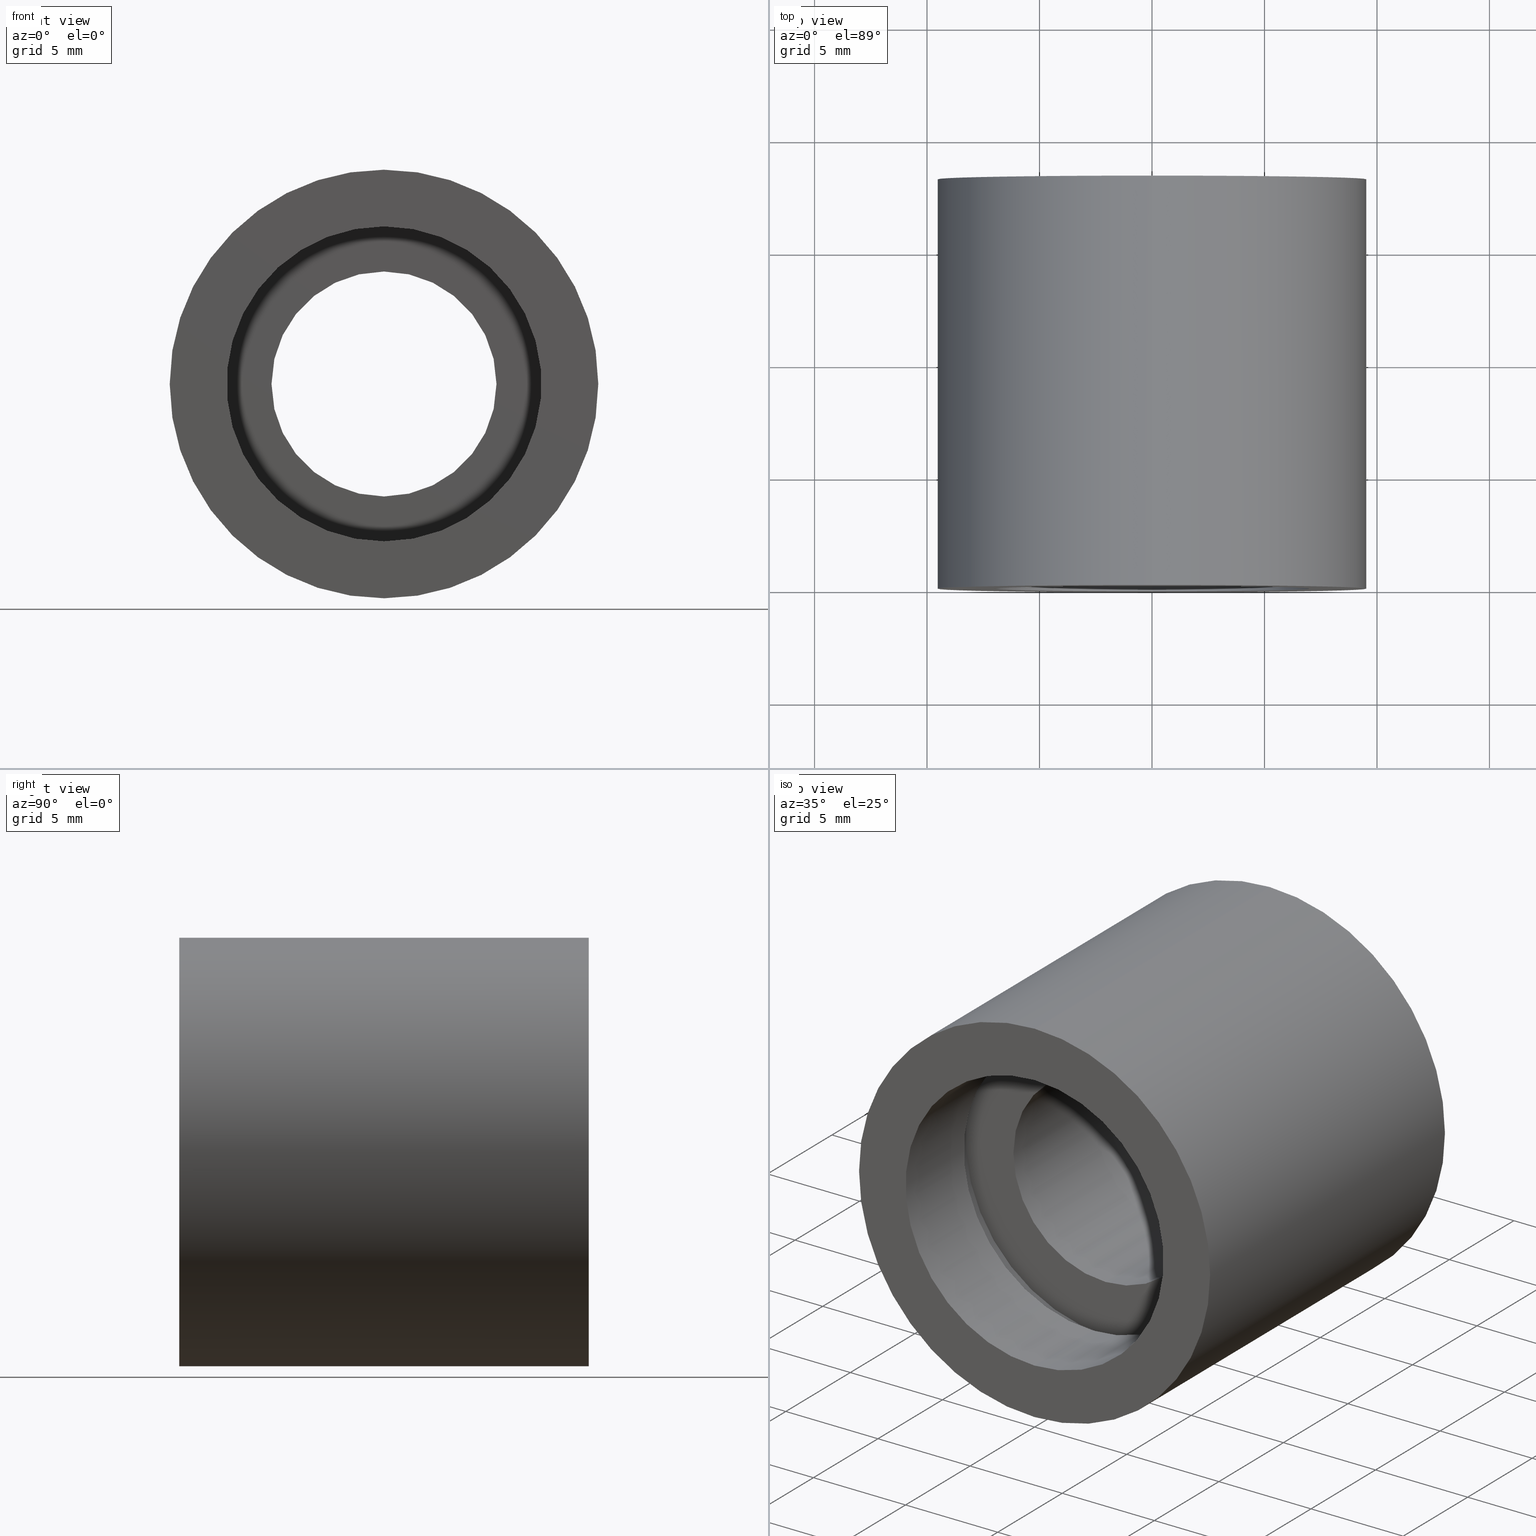
[diagram: canonical four-view strip — front | top / right | iso, engineering-drawing reading convention]
A machine part, canonical four-view strip (front | top / right | iso — engineering-drawing reading convention). The complete STEP part file that produces these views, byte-faithful:
ISO-10303-21;
HEADER;
FILE_DESCRIPTION (( 'STEP AP214' ),
    '1' );
FILE_NAME ('503098.STEP',
    '2019-09-11T08:44:09',
    ( '' ),
    ( '' ),
    'SwSTEP 2.0',
    'SolidWorks 2016',
    '' );
FILE_SCHEMA (( 'AUTOMOTIVE_DESIGN' ));
ENDSEC;

DATA;
#1 = PLANE ( 'NONE',  #598 ) ;
#2 = DIRECTION ( 'NONE',  ( -0.0000000000000000000, 1.000000000000000000, -0.0000000000000000000 ) ) ;
#3 = DIRECTION ( 'NONE',  ( 0.0000000000000000000, -1.000000000000000000, 0.0000000000000000000 ) ) ;
#4 = AXIS2_PLACEMENT_3D ( 'NONE', #235, #575, #347 ) ;
#5 = EDGE_LOOP ( 'NONE', ( #168, #387, #214, #605 ) ) ;
#6 = CARTESIAN_POINT ( 'NONE',  ( 0.0000000000000000000, 4.499999999999976000, 0.0000000000000000000 ) ) ;
#7 = EDGE_CURVE ( 'NONE', #467, #444, #619, .T. ) ;
#8 = DIRECTION ( 'NONE',  ( 0.0000000000000000000, 0.0000000000000000000, 1.000000000000000000 ) ) ;
#9 = CARTESIAN_POINT ( 'NONE',  ( 0.0000000000000000000, 161.3761669434274500, 7.000000000000020400 ) ) ;
#10 = DIRECTION ( 'NONE',  ( 0.0000000000000000000, 0.0000000000000000000, 1.000000000000000000 ) ) ;
#11 = SURFACE_SIDE_STYLE ('',( #601 ) ) ;
#12 = CARTESIAN_POINT ( 'NONE',  ( 8.572527594031496900E-016, 161.3761669434274500, -7.000000000000020400 ) ) ;
#13 = PRESENTATION_LAYER_ASSIGNMENT (  '', '', ( #118 ) ) ;
#14 = EDGE_LOOP ( 'NONE', ( #491, #321, #194, #463 ) ) ;
#15 = ORIENTED_EDGE ( 'NONE', *, *, #477, .F. ) ;
#16 = PRESENTATION_STYLE_ASSIGNMENT (( #286 ) ) ;
#17 = CIRCLE ( 'NONE', #61, 7.600000000000019200 ) ;
#18 = SURFACE_SIDE_STYLE ('',( #115 ) ) ;
#19 = EDGE_CURVE ( 'NONE', #63, #550, #117, .T. ) ;
#20 = VERTEX_POINT ( 'NONE', #148 ) ;
#21 = PRODUCT_DEFINITION_SHAPE ( 'NONE', 'NONE',  #97 ) ;
#22 = PRESENTATION_LAYER_ASSIGNMENT (  '', '', ( #69 ) ) ;
#23 = ORIENTED_EDGE ( 'NONE', *, *, #506, .F. ) ;
#24 = ADVANCED_FACE ( 'NONE', ( #496, #261 ), #485, .F. ) ;
#25 = EDGE_CURVE ( 'NONE', #358, #267, #211, .T. ) ;
#26 = ORIENTED_EDGE ( 'NONE', *, *, #578, .T. ) ;
#27 = CARTESIAN_POINT ( 'NONE',  ( 0.0000000000000000000, -2.775557561562891400E-014, 0.0000000000000000000 ) ) ;
#28 = VECTOR ( 'NONE', #561, 1000.000000000000000 ) ;
#29 =( NAMED_UNIT ( * ) PLANE_ANGLE_UNIT ( ) SI_UNIT ( $, .RADIAN. ) );
#30 = ADVANCED_FACE ( 'NONE', ( #585 ), #604, .F. ) ;
#31 = ORIENTED_EDGE ( 'NONE', *, *, #602, .F. ) ;
#32 =( NAMED_UNIT ( * ) PLANE_ANGLE_UNIT ( ) SI_UNIT ( $, .RADIAN. ) );
#33 = MECHANICAL_DESIGN_GEOMETRIC_PRESENTATION_REPRESENTATION (  '', ( #308 ), #338 ) ;
#34 = CARTESIAN_POINT ( 'NONE',  ( 0.0000000000000000000, 161.3761669434274500, 5.000000000000019500 ) ) ;
#35 = EDGE_LOOP ( 'NONE', ( #552, #140 ) ) ;
#36 = CARTESIAN_POINT ( 'NONE',  ( 0.0000000000000000000, 12.69999999999998900, 5.000000000000019500 ) ) ;
#37 = DIRECTION ( 'NONE',  ( -0.0000000000000000000, 1.000000000000000000, -0.0000000000000000000 ) ) ;
#38 = FACE_OUTER_BOUND ( 'NONE', #116, .T. ) ;
#39 = CARTESIAN_POINT ( 'NONE',  ( 8.817456953860961000E-016, 13.69999999999999000, -7.200000000000015300 ) ) ;
#40 = ORIENTED_EDGE ( 'NONE', *, *, #549, .F. ) ;
#41 = EDGE_CURVE ( 'NONE', #113, #316, #405, .T. ) ;
#42 = DIRECTION ( 'NONE',  ( 0.0000000000000000000, 0.0000000000000000000, 1.000000000000000000 ) ) ;
#43 =( LENGTH_UNIT ( ) NAMED_UNIT ( * ) SI_UNIT ( .MILLI., .METRE. ) );
#44 = ORIENTED_EDGE ( 'NONE', *, *, #319, .T. ) ;
#45 = ORIENTED_EDGE ( 'NONE', *, *, #332, .T. ) ;
#46 = PRESENTATION_STYLE_ASSIGNMENT (( #539 ) ) ;
#47 =( NAMED_UNIT ( * ) SI_UNIT ( $, .STERADIAN. ) SOLID_ANGLE_UNIT ( ) );
#48 = ORIENTED_EDGE ( 'NONE', *, *, #413, .F. ) ;
#49 = EDGE_CURVE ( 'NONE', #172, #282, #271, .T. ) ;
#50 = DIRECTION ( 'NONE',  ( 0.0000000000000000000, 0.0000000000000000000, 1.000000000000000000 ) ) ;
#51 = ORIENTED_EDGE ( 'NONE', *, *, #565, .T. ) ;
#52 = PRESENTATION_STYLE_ASSIGNMENT (( #94 ) ) ;
#53 =( LENGTH_UNIT ( ) NAMED_UNIT ( * ) SI_UNIT ( .MILLI., .METRE. ) );
#54 = PRESENTATION_STYLE_ASSIGNMENT (( #415 ) ) ;
#55 = ORIENTED_EDGE ( 'NONE', *, *, #565, .F. ) ;
#56 = DIRECTION ( 'NONE',  ( 0.0000000000000000000, 0.0000000000000000000, 1.000000000000000000 ) ) ;
#57 = PRESENTATION_LAYER_ASSIGNMENT (  '', '', ( #327 ) ) ;
#58 = FACE_BOUND ( 'NONE', #260, .T. ) ;
#59 = FILL_AREA_STYLE ('',( #354 ) ) ;
#60 = FACE_OUTER_BOUND ( 'NONE', #299, .T. ) ;
#61 = AXIS2_PLACEMENT_3D ( 'NONE', #379, #138, #521 ) ;
#62 =( NAMED_UNIT ( * ) SI_UNIT ( $, .STERADIAN. ) SOLID_ANGLE_UNIT ( ) );
#63 = VERTEX_POINT ( 'NONE', #105 ) ;
#64 = CARTESIAN_POINT ( 'NONE',  ( 0.0000000000000000000, 0.0000000000000000000, 0.0000000000000000000 ) ) ;
#65 = ORIENTED_EDGE ( 'NONE', *, *, #348, .F. ) ;
#66 = ADVANCED_FACE ( 'NONE', ( #306, #109 ), #590, .F. ) ;
#67 = FACE_BOUND ( 'NONE', #383, .T. ) ;
#68 = EDGE_CURVE ( 'NONE', #545, #78, #144, .T. ) ;
#69 = STYLED_ITEM ( 'NONE', ( #54 ), #264 ) ;
#70 = ORIENTED_EDGE ( 'NONE', *, *, #549, .T. ) ;
#71 = ADVANCED_FACE ( 'NONE', ( #548 ), #593, .F. ) ;
#72 = EDGE_CURVE ( 'NONE', #444, #535, #573, .T. ) ;
#73 = CIRCLE ( 'NONE', #457, 7.600000000000019200 ) ;
#74 = FILL_AREA_STYLE ('',( #471 ) ) ;
#75 = VECTOR ( 'NONE', #323, 1000.000000000000000 ) ;
#76 = DIRECTION ( 'NONE',  ( -0.0000000000000000000, 1.000000000000000000, -0.0000000000000000000 ) ) ;
#77 = MECHANICAL_DESIGN_GEOMETRIC_PRESENTATION_REPRESENTATION (  '', ( #327 ), #353 ) ;
#78 = VERTEX_POINT ( 'NONE', #153 ) ;
#79 = DIRECTION ( 'NONE',  ( -0.0000000000000000000, 1.000000000000000000, -0.0000000000000000000 ) ) ;
#80 = EDGE_CURVE ( 'NONE', #474, #292, #160, .T. ) ;
#81 = EDGE_LOOP ( 'NONE', ( #456, #101 ) ) ;
#82 = CARTESIAN_POINT ( 'NONE',  ( 0.0000000000000000000, 5.499999999999976900, 0.0000000000000000000 ) ) ;
#83 = SURFACE_STYLE_FILL_AREA ( #516 ) ;
#84 = VECTOR ( 'NONE', #345, 1000.000000000000000 ) ;
#85 = ORIENTED_EDGE ( 'NONE', *, *, #303, .F. ) ;
#86 = CARTESIAN_POINT ( 'NONE',  ( 7.000000000000020400, -1.634585625335647100E-014, 0.0000000000000000000 ) ) ;
#87 = CARTESIAN_POINT ( 'NONE',  ( 8.817456953860963000E-016, 18.19999999999999600, -7.200000000000017100 ) ) ;
#88 = CARTESIAN_POINT ( 'NONE',  ( 0.0000000000000000000, 4.499999999999976000, 7.600000000000019200 ) ) ;
#89 = CIRCLE ( 'NONE', #133, 7.600000000000019200 ) ;
#90 = ORIENTED_EDGE ( 'NONE', *, *, #136, .T. ) ;
#91 = UNCERTAINTY_MEASURE_WITH_UNIT (LENGTH_MEASURE( 1.000000000000000100E-005 ), #617, 'distance_accuracy_value', 'NONE');
#92 = AXIS2_PLACEMENT_3D ( 'NONE', #301, #204, #594 ) ;
#93 = CARTESIAN_POINT ( 'NONE',  ( 0.0000000000000000000, 4.499999999999976000, 0.0000000000000000000 ) ) ;
#94 = SURFACE_STYLE_USAGE ( .BOTH. , #339 ) ;
#95 = DIRECTION ( 'NONE',  ( 0.0000000000000000000, 0.0000000000000000000, 1.000000000000000000 ) ) ;
#96 = LINE ( 'NONE', #615, #28 ) ;
#97 = PRODUCT_DEFINITION ( 'δ֪', '', #162, #254 ) ;
#98 = DIRECTION ( 'NONE',  ( 0.0000000000000000000, 0.0000000000000000000, 1.000000000000000000 ) ) ;
#99 = LINE ( 'NONE', #9, #599 ) ;
#100 = PRODUCT ( '503098', '503098', '', ( #551 ) ) ;
#101 = ORIENTED_EDGE ( 'NONE', *, *, #527, .T. ) ;
#102 = EDGE_CURVE ( 'NONE', #78, #545, #429, .T. ) ;
#103 =( GEOMETRIC_REPRESENTATION_CONTEXT ( 3 ) GLOBAL_UNCERTAINTY_ASSIGNED_CONTEXT ( ( #297 ) ) GLOBAL_UNIT_ASSIGNED_CONTEXT ( ( #272, #32, #274 ) ) REPRESENTATION_CONTEXT ( 'NONE', 'WORKASPACE' ) );
#104 = CARTESIAN_POINT ( 'NONE',  ( 0.0000000000000000000, -2.775557561562891400E-014, 0.0000000000000000000 ) ) ;
#105 = CARTESIAN_POINT ( 'NONE',  ( 6.123233995736789000E-016, 5.499999999999976900, -5.000000000000019500 ) ) ;
#106 = FACE_OUTER_BOUND ( 'NONE', #5, .T. ) ;
#107 = EDGE_CURVE ( 'NONE', #358, #546, #17, .T. ) ;
#108 = ORIENTED_EDGE ( 'NONE', *, *, #72, .F. ) ;
#109 = FACE_OUTER_BOUND ( 'NONE', #340, .T. ) ;
#110 = CARTESIAN_POINT ( 'NONE',  ( 7.000000000000020400, 4.499999999999983100, 0.0000000000000000000 ) ) ;
#111 = ORIENTED_EDGE ( 'NONE', *, *, #136, .F. ) ;
#112 = AXIS2_PLACEMENT_3D ( 'NONE', #432, #579, #294 ) ;
#113 = VERTEX_POINT ( 'NONE', #183 ) ;
#114 = EDGE_CURVE ( 'NONE', #529, #267, #480, .T. ) ;
#115 = SURFACE_STYLE_FILL_AREA ( #59 ) ;
#116 = EDGE_LOOP ( 'NONE', ( #597, #179, #510, #249 ) ) ;
#117 = CIRCLE ( 'NONE', #624, 5.000000000000019500 ) ;
#118 = STYLED_ITEM ( 'NONE', ( #46 ), #609 ) ;
#119 = ORIENTED_EDGE ( 'NONE', *, *, #80, .T. ) ;
#120 = DIRECTION ( 'NONE',  ( -0.0000000000000000000, 1.000000000000000000, -0.0000000000000000000 ) ) ;
#121 = AXIS2_PLACEMENT_3D ( 'NONE', #224, #613, #236 ) ;
#122 = CARTESIAN_POINT ( 'NONE',  ( 0.0000000000000000000, 12.69999999999998900, 0.0000000000000000000 ) ) ;
#123 = ORIENTED_EDGE ( 'NONE', *, *, #234, .F. ) ;
#124 = LINE ( 'NONE', #34, #530 ) ;
#125 =( NAMED_UNIT ( * ) SI_UNIT ( $, .STERADIAN. ) SOLID_ANGLE_UNIT ( ) );
#126 = CARTESIAN_POINT ( 'NONE',  ( 6.123233995736789000E-016, 161.3761669434274500, -5.000000000000019500 ) ) ;
#127 = DIRECTION ( 'NONE',  ( 0.0000000000000000000, 0.0000000000000000000, 1.000000000000000000 ) ) ;
#128 = AXIS2_PLACEMENT_3D ( 'NONE', #465, #320, #365 ) ;
#129 = VERTEX_POINT ( 'NONE', #372 ) ;
#130 = CARTESIAN_POINT ( 'NONE',  ( 0.0000000000000000000, 5.499999999999976900, 0.0000000000000000000 ) ) ;
#131 = CARTESIAN_POINT ( 'NONE',  ( 0.0000000000000000000, 161.3761669434274500, 0.0000000000000000000 ) ) ;
#132 = AXIS2_PLACEMENT_3D ( 'NONE', #433, #240, #490 ) ;
#133 = AXIS2_PLACEMENT_3D ( 'NONE', #93, #620, #419 ) ;
#134 = DIRECTION ( 'NONE',  ( -0.0000000000000000000, 1.000000000000000000, 0.0000000000000000000 ) ) ;
#135 = FILL_AREA_STYLE ('',( #181 ) ) ;
#136 = EDGE_CURVE ( 'NONE', #550, #63, #352, .T. ) ;
#137 = CARTESIAN_POINT ( 'NONE',  ( 8.817456953860961000E-016, 161.3761669434274500, -7.200000000000015300 ) ) ;
#138 = DIRECTION ( 'NONE',  ( -0.0000000000000000000, 1.000000000000000000, -0.0000000000000000000 ) ) ;
#139 = DIRECTION ( 'NONE',  ( -0.0000000000000000000, 1.000000000000000000, -0.0000000000000000000 ) ) ;
#140 = ORIENTED_EDGE ( 'NONE', *, *, #578, .F. ) ;
#141 = CYLINDRICAL_SURFACE ( 'NONE', #229, 7.600000000000019200 ) ;
#142 = PRESENTATION_LAYER_ASSIGNMENT (  '', '', ( #255 ) ) ;
#143 = CARTESIAN_POINT ( 'NONE',  ( 0.0000000000000000000, 161.3761669434274500, 0.0000000000000000000 ) ) ;
#144 = CIRCLE ( 'NONE', #461, 9.525000000000019900 ) ;
#145 = CARTESIAN_POINT ( 'NONE',  ( 0.0000000000000000000, 18.19999999999999600, 9.525000000000019900 ) ) ;
#146 = ORIENTED_EDGE ( 'NONE', *, *, #41, .F. ) ;
#147 = CARTESIAN_POINT ( 'NONE',  ( 0.0000000000000000000, 161.3761669434274500, 0.0000000000000000000 ) ) ;
#148 = CARTESIAN_POINT ( 'NONE',  ( 6.123233995736789000E-016, 12.69999999999998900, -5.000000000000019500 ) ) ;
#149 = DIRECTION ( 'NONE',  ( -0.0000000000000000000, 1.000000000000000000, -0.0000000000000000000 ) ) ;
#150 = CARTESIAN_POINT ( 'NONE',  ( 0.0000000000000000000, 5.499999999999976900, 5.000000000000019500 ) ) ;
#151 = CYLINDRICAL_SURFACE ( 'NONE', #216, 7.000000000000020400 ) ;
#152 =( LENGTH_UNIT ( ) NAMED_UNIT ( * ) SI_UNIT ( .MILLI., .METRE. ) );
#153 = CARTESIAN_POINT ( 'NONE',  ( 1.166476076187856400E-015, 18.19999999999999600, -9.525000000000019900 ) ) ;
#154 = APPLICATION_PROTOCOL_DEFINITION ( 'draft international standard', 'automotive_design', 1998, #212 ) ;
#155 = SURFACE_STYLE_USAGE ( .BOTH. , #11 ) ;
#156 = ORIENTED_EDGE ( 'NONE', *, *, #527, .F. ) ;
#157 = UNCERTAINTY_MEASURE_WITH_UNIT (LENGTH_MEASURE( 1.000000000000000100E-005 ), #43, 'distance_accuracy_value', 'NONE');
#158 = ORIENTED_EDGE ( 'NONE', *, *, #263, .F. ) ;
#159 = MECHANICAL_DESIGN_GEOMETRIC_PRESENTATION_REPRESENTATION (  '', ( #407 ), #610 ) ;
#160 = CIRCLE ( 'NONE', #247, 7.600000000000019200 ) ;
#161 = EDGE_LOOP ( 'NONE', ( #421, #218 ) ) ;
#162 = PRODUCT_DEFINITION_FORMATION_WITH_SPECIFIED_SOURCE ( '�κ�', '', #100, .NOT_KNOWN. ) ;
#163 =( NAMED_UNIT ( * ) PLANE_ANGLE_UNIT ( ) SI_UNIT ( $, .RADIAN. ) );
#164 = ORIENTED_EDGE ( 'NONE', *, *, #442, .F. ) ;
#165 = ADVANCED_FACE ( 'NONE', ( #460 ), #217, .T. ) ;
#166 = AXIS2_PLACEMENT_3D ( 'NONE', #580, #149, #351 ) ;
#167 = MECHANICAL_DESIGN_GEOMETRIC_PRESENTATION_REPRESENTATION (  '', ( #118 ), #406 ) ;
#168 = ORIENTED_EDGE ( 'NONE', *, *, #19, .F. ) ;
#169 = EDGE_CURVE ( 'NONE', #302, #282, #284, .T. ) ;
#170 = ORIENTED_EDGE ( 'NONE', *, *, #378, .F. ) ;
#171 = VERTEX_POINT ( 'NONE', #87 ) ;
#172 = VERTEX_POINT ( 'NONE', #472 ) ;
#173 = CARTESIAN_POINT ( 'NONE',  ( 8.572527594031496900E-016, 4.499999999999976000, -7.000000000000020400 ) ) ;
#174 = ADVANCED_FACE ( 'NONE', ( #60 ), #334, .T. ) ;
#175 = COLOUR_RGB ( '',1.000000000000000000, 1.000000000000000000, 1.000000000000000000 ) ;
#176 = DIRECTION ( 'NONE',  ( 0.0000000000000000000, 0.0000000000000000000, 1.000000000000000000 ) ) ;
#177 = EDGE_CURVE ( 'NONE', #546, #529, #559, .T. ) ;
#178 = CARTESIAN_POINT ( 'NONE',  ( 1.166476076187856400E-015, -2.775557561562891400E-014, -9.525000000000019900 ) ) ;
#179 = ORIENTED_EDGE ( 'NONE', *, *, #25, .T. ) ;
#180 = VECTOR ( 'NONE', #335, 1000.000000000000000 ) ;
#181 = FILL_AREA_STYLE_COLOUR ( '', #514 ) ;
#182 = CYLINDRICAL_SURFACE ( 'NONE', #538, 7.000000000000020400 ) ;
#183 = CARTESIAN_POINT ( 'NONE',  ( 0.0000000000000000000, -2.775557561562891400E-014, 9.525000000000019900 ) ) ;
#184 = ORIENTED_EDGE ( 'NONE', *, *, #7, .F. ) ;
#185 = DIRECTION ( 'NONE',  ( -0.0000000000000000000, 1.000000000000000000, -0.0000000000000000000 ) ) ;
#186 = EDGE_LOOP ( 'NONE', ( #360, #227 ) ) ;
#187 = DIRECTION ( 'NONE',  ( -0.0000000000000000000, 1.000000000000000000, 0.0000000000000000000 ) ) ;
#188 = CYLINDRICAL_SURFACE ( 'NONE', #4, 7.200000000000015300 ) ;
#189 = ORIENTED_EDGE ( 'NONE', *, *, #202, .F. ) ;
#190 = DIRECTION ( 'NONE',  ( -0.0000000000000000000, 1.000000000000000000, -0.0000000000000000000 ) ) ;
#191 = PRESENTATION_LAYER_ASSIGNMENT (  '', '', ( #400 ) ) ;
#192 = FILL_AREA_STYLE ('',( #528 ) ) ;
#193 = CARTESIAN_POINT ( 'NONE',  ( 9.307315673519907200E-016, 5.499999999999976900, -7.600000000000019200 ) ) ;
#194 = ORIENTED_EDGE ( 'NONE', *, *, #68, .F. ) ;
#195 = SURFACE_STYLE_FILL_AREA ( #390 ) ;
#196 = PRODUCT_RELATED_PRODUCT_CATEGORY ( 'part', '', ( #100 ) ) ;
#197 = FILL_AREA_STYLE ('',( #244 ) ) ;
#198 = CIRCLE ( 'NONE', #431, 7.600000000000019200 ) ;
#199 = AXIS2_PLACEMENT_3D ( 'NONE', #147, #396, #304 ) ;
#200 = CARTESIAN_POINT ( 'NONE',  ( 0.0000000000000000000, 161.3761669434274500, 0.0000000000000000000 ) ) ;
#201 =( NAMED_UNIT ( * ) PLANE_ANGLE_UNIT ( ) SI_UNIT ( $, .RADIAN. ) );
#202 = EDGE_CURVE ( 'NONE', #623, #567, #259, .T. ) ;
#203 = FACE_OUTER_BOUND ( 'NONE', #186, .T. ) ;
#204 = DIRECTION ( 'NONE',  ( -0.0000000000000000000, 1.000000000000000000, -0.0000000000000000000 ) ) ;
#205 = PRESENTATION_STYLE_ASSIGNMENT (( #330 ) ) ;
#206 = EDGE_LOOP ( 'NONE', ( #189, #526 ) ) ;
#207 = AXIS2_PLACEMENT_3D ( 'NONE', #143, #523, #232 ) ;
#208 = CARTESIAN_POINT ( 'NONE',  ( 0.0000000000000000000, 5.499999999999976900, 7.600000000000019200 ) ) ;
#209 = VECTOR ( 'NONE', #375, 1000.000000000000000 ) ;
#210 = AXIS2_PLACEMENT_3D ( 'NONE', #486, #3, #290 ) ;
#211 = LINE ( 'NONE', #582, #84 ) ;
#212 = APPLICATION_CONTEXT ( 'automotive_design' ) ;
#213 = ADVANCED_FACE ( 'NONE', ( #449 ), #182, .F. ) ;
#214 = ORIENTED_EDGE ( 'NONE', *, *, #234, .T. ) ;
#215 = LINE ( 'NONE', #478, #223 ) ;
#216 = AXIS2_PLACEMENT_3D ( 'NONE', #367, #120, #417 ) ;
#217 = CYLINDRICAL_SURFACE ( 'NONE', #470, 9.525000000000019900 ) ;
#218 = ORIENTED_EDGE ( 'NONE', *, *, #7, .T. ) ;
#219 = EDGE_CURVE ( 'NONE', #474, #623, #455, .T. ) ;
#220 = CARTESIAN_POINT ( 'NONE',  ( 9.307315673519907200E-016, 13.69999999999999000, -7.600000000000019200 ) ) ;
#221 = EDGE_LOOP ( 'NONE', ( #23, #441, #256, #401 ) ) ;
#222 = DIRECTION ( 'NONE',  ( 0.0000000000000000000, 0.0000000000000000000, 1.000000000000000000 ) ) ;
#223 = VECTOR ( 'NONE', #329, 1000.000000000000000 ) ;
#224 = CARTESIAN_POINT ( 'NONE',  ( 0.0000000000000000000, 13.69999999999999000, 0.0000000000000000000 ) ) ;
#225 = COLOUR_RGB ( '',1.000000000000000000, 1.000000000000000000, 1.000000000000000000 ) ;
#226 = CIRCLE ( 'NONE', #574, 5.000000000000019500 ) ;
#227 = ORIENTED_EDGE ( 'NONE', *, *, #107, .T. ) ;
#228 = SURFACE_SIDE_STYLE ('',( #83 ) ) ;
#229 = AXIS2_PLACEMENT_3D ( 'NONE', #381, #230, #278 ) ;
#230 = DIRECTION ( 'NONE',  ( -0.0000000000000000000, 1.000000000000000000, -0.0000000000000000000 ) ) ;
#231 = CARTESIAN_POINT ( 'NONE',  ( 0.0000000000000000000, 161.3761669434274500, 0.0000000000000000000 ) ) ;
#232 = DIRECTION ( 'NONE',  ( 0.0000000000000000000, 0.0000000000000000000, 1.000000000000000000 ) ) ;
#233 = CARTESIAN_POINT ( 'NONE',  ( 0.0000000000000000000, 161.3761669434274500, 0.0000000000000000000 ) ) ;
#234 = EDGE_CURVE ( 'NONE', #20, #452, #363, .T. ) ;
#235 = CARTESIAN_POINT ( 'NONE',  ( 0.0000000000000000000, 161.3761669434274500, 0.0000000000000000000 ) ) ;
#236 = DIRECTION ( 'NONE',  ( 0.0000000000000000000, 0.0000000000000000000, 1.000000000000000000 ) ) ;
#237 = ORIENTED_EDGE ( 'NONE', *, *, #378, .T. ) ;
#238 = CARTESIAN_POINT ( 'NONE',  ( 0.0000000000000000000, 13.69999999999999000, 7.200000000000015300 ) ) ;
#239 = DIRECTION ( 'NONE',  ( 0.0000000000000000000, 0.0000000000000000000, 1.000000000000000000 ) ) ;
#240 = DIRECTION ( 'NONE',  ( -0.0000000000000000000, 1.000000000000000000, -0.0000000000000000000 ) ) ;
#241 = EDGE_LOOP ( 'NONE', ( #504, #15 ) ) ;
#242 = VECTOR ( 'NONE', #280, 1000.000000000000000 ) ;
#243 = PLANE ( 'NONE',  #112 ) ;
#244 = FILL_AREA_STYLE_COLOUR ( '', #473 ) ;
#245 = UNCERTAINTY_MEASURE_WITH_UNIT (LENGTH_MEASURE( 1.000000000000000100E-005 ), #269, 'distance_accuracy_value', 'NONE');
#246 = CYLINDRICAL_SURFACE ( 'NONE', #199, 5.000000000000019500 ) ;
#247 = AXIS2_PLACEMENT_3D ( 'NONE', #376, #423, #426 ) ;
#248 = CARTESIAN_POINT ( 'NONE',  ( 0.0000000000000000000, 12.69999999999998900, 7.600000000000019200 ) ) ;
#249 = ORIENTED_EDGE ( 'NONE', *, *, #177, .F. ) ;
#250 = DIRECTION ( 'NONE',  ( 0.0000000000000000000, 0.0000000000000000000, 1.000000000000000000 ) ) ;
#251 = DIRECTION ( 'NONE',  ( -0.0000000000000000000, 1.000000000000000000, -0.0000000000000000000 ) ) ;
#252 = DIRECTION ( 'NONE',  ( -0.0000000000000000000, 1.000000000000000000, -0.0000000000000000000 ) ) ;
#253 = DIRECTION ( 'NONE',  ( -0.0000000000000000000, 1.000000000000000000, -0.0000000000000000000 ) ) ;
#254 = PRODUCT_DEFINITION_CONTEXT ( 'detailed design', #503, 'design' ) ;
#255 = STYLED_ITEM ( 'NONE', ( #52 ), #513 ) ;
#256 = ORIENTED_EDGE ( 'NONE', *, *, #219, .T. ) ;
#257 = ORIENTED_EDGE ( 'NONE', *, *, #541, .T. ) ;
#258 = FACE_OUTER_BOUND ( 'NONE', #241, .T. ) ;
#259 = CIRCLE ( 'NONE', #310, 7.600000000000019200 ) ;
#260 = EDGE_LOOP ( 'NONE', ( #90, #368 ) ) ;
#261 = FACE_OUTER_BOUND ( 'NONE', #366, .T. ) ;
#262 = AXIS2_PLACEMENT_3D ( 'NONE', #558, #468, #612 ) ;
#263 = EDGE_CURVE ( 'NONE', #546, #358, #277, .T. ) ;
#264 = ADVANCED_FACE ( 'NONE', ( #438 ), #151, .F. ) ;
#265 = DIRECTION ( 'NONE',  ( -0.0000000000000000000, 1.000000000000000000, -0.0000000000000000000 ) ) ;
#266 = ADVANCED_FACE ( 'NONE', ( #38 ), #313, .F. ) ;
#267 = VERTEX_POINT ( 'NONE', #220 ) ;
#268 = COLOUR_RGB ( '',1.000000000000000000, 1.000000000000000000, 1.000000000000000000 ) ;
#269 =( LENGTH_UNIT ( ) NAMED_UNIT ( * ) SI_UNIT ( .MILLI., .METRE. ) );
#270 = AXIS2_PLACEMENT_3D ( 'NONE', #6, #251, #344 ) ;
#271 = LINE ( 'NONE', #12, #532 ) ;
#272 =( LENGTH_UNIT ( ) NAMED_UNIT ( * ) SI_UNIT ( .MILLI., .METRE. ) );
#273 = AXIS2_PLACEMENT_3D ( 'NONE', #418, #481, #572 ) ;
#274 =( NAMED_UNIT ( * ) SI_UNIT ( $, .STERADIAN. ) SOLID_ANGLE_UNIT ( ) );
#275 = DIRECTION ( 'NONE',  ( 0.0000000000000000000, 0.0000000000000000000, 1.000000000000000000 ) ) ;
#276 = DIRECTION ( 'NONE',  ( 0.0000000000000000000, 0.0000000000000000000, 1.000000000000000000 ) ) ;
#277 = CIRCLE ( 'NONE', #357, 7.600000000000019200 ) ;
#278 = DIRECTION ( 'NONE',  ( 0.0000000000000000000, 0.0000000000000000000, 1.000000000000000000 ) ) ;
#279 = MECHANICAL_DESIGN_GEOMETRIC_PRESENTATION_REPRESENTATION (  '', ( #255 ), #500 ) ;
#280 = DIRECTION ( 'NONE',  ( -0.0000000000000000000, 1.000000000000000000, -0.0000000000000000000 ) ) ;
#281 = DIRECTION ( 'NONE',  ( -0.0000000000000000000, 1.000000000000000000, -0.0000000000000000000 ) ) ;
#282 = VERTEX_POINT ( 'NONE', #173 ) ;
#283 = CARTESIAN_POINT ( 'NONE',  ( 5.000000000000019500, 12.69999999999998200, 0.0000000000000000000 ) ) ;
#284 = CIRCLE ( 'NONE', #451, 7.000000000000020400 ) ;
#285 = EDGE_CURVE ( 'NONE', #567, #623, #198, .T. ) ;
#286 = SURFACE_STYLE_USAGE ( .BOTH. , #531 ) ;
#287 = ADVANCED_BREP_SHAPE_REPRESENTATION ( '503098', ( #311, #395 ), #466 ) ;
#288 = ORIENTED_EDGE ( 'NONE', *, *, #285, .T. ) ;
#289 =( NAMED_UNIT ( * ) PLANE_ANGLE_UNIT ( ) SI_UNIT ( $, .RADIAN. ) );
#290 = DIRECTION ( 'NONE',  ( 0.0000000000000000000, -0.0000000000000000000, -1.000000000000000000 ) ) ;
#291 = FILL_AREA_STYLE ('',( #437 ) ) ;
#292 = VERTEX_POINT ( 'NONE', #611 ) ;
#293 = FACE_OUTER_BOUND ( 'NONE', #206, .T. ) ;
#294 = DIRECTION ( 'NONE',  ( 0.0000000000000000000, 0.0000000000000000000, 1.000000000000000000 ) ) ;
#295 = MECHANICAL_DESIGN_GEOMETRIC_PRESENTATION_REPRESENTATION (  '', ( #409 ), #103 ) ;
#296 = CARTESIAN_POINT ( 'NONE',  ( 0.0000000000000000000, -2.775557561562891400E-014, 0.0000000000000000000 ) ) ;
#297 = UNCERTAINTY_MEASURE_WITH_UNIT (LENGTH_MEASURE( 1.000000000000000100E-005 ), #272, 'distance_accuracy_value', 'NONE');
#298 = CARTESIAN_POINT ( 'NONE',  ( 0.0000000000000000000, 18.19999999999999600, 0.0000000000000000000 ) ) ;
#299 = EDGE_LOOP ( 'NONE', ( #65, #45, #554, #374 ) ) ;
#300 =( NAMED_UNIT ( * ) PLANE_ANGLE_UNIT ( ) SI_UNIT ( $, .RADIAN. ) );
#301 = CARTESIAN_POINT ( 'NONE',  ( 0.0000000000000000000, 161.3761669434274500, 0.0000000000000000000 ) ) ;
#302 = VERTEX_POINT ( 'NONE', #607 ) ;
#303 = EDGE_CURVE ( 'NONE', #63, #20, #540, .T. ) ;
#304 = DIRECTION ( 'NONE',  ( 0.0000000000000000000, 0.0000000000000000000, 1.000000000000000000 ) ) ;
#305 = ORIENTED_EDGE ( 'NONE', *, *, #25, .F. ) ;
#306 = FACE_BOUND ( 'NONE', #35, .T. ) ;
#307 = CIRCLE ( 'NONE', #606, 7.000000000000020400 ) ;
#308 = STYLED_ITEM ( 'NONE', ( #469 ), #287 ) ;
#309 =( LENGTH_UNIT ( ) NAMED_UNIT ( * ) SI_UNIT ( .MILLI., .METRE. ) );
#310 = AXIS2_PLACEMENT_3D ( 'NONE', #82, #185, #569 ) ;
#311 = MANIFOLD_SOLID_BREP ( '��ת1', #393 ) ;
#312 = FACE_OUTER_BOUND ( 'NONE', #596, .T. ) ;
#313 = CYLINDRICAL_SURFACE ( 'NONE', #128, 7.600000000000019200 ) ;
#314 = PRESENTATION_STYLE_ASSIGNMENT (( #155 ) ) ;
#315 = EDGE_LOOP ( 'NONE', ( #85, #111, #428, #257 ) ) ;
#316 = VERTEX_POINT ( 'NONE', #178 ) ;
#317 = AXIS2_PLACEMENT_3D ( 'NONE', #479, #2, #622 ) ;
#318 = SURFACE_STYLE_FILL_AREA ( #135 ) ;
#319 = EDGE_CURVE ( 'NONE', #535, #171, #331, .T. ) ;
#320 = DIRECTION ( 'NONE',  ( -0.0000000000000000000, 1.000000000000000000, -0.0000000000000000000 ) ) ;
#321 = ORIENTED_EDGE ( 'NONE', *, *, #348, .T. ) ;
#322 = COLOUR_RGB ( '',1.000000000000000000, 1.000000000000000000, 1.000000000000000000 ) ;
#323 = DIRECTION ( 'NONE',  ( -0.0000000000000000000, 1.000000000000000000, -0.0000000000000000000 ) ) ;
#324 = FACE_OUTER_BOUND ( 'NONE', #315, .T. ) ;
#325 = CARTESIAN_POINT ( 'NONE',  ( 9.307315673519907200E-016, 12.69999999999998900, -7.600000000000019200 ) ) ;
#326 = ORIENTED_EDGE ( 'NONE', *, *, #72, .T. ) ;
#327 = STYLED_ITEM ( 'NONE', ( #16 ), #507 ) ;
#328 =( NAMED_UNIT ( * ) PLANE_ANGLE_UNIT ( ) SI_UNIT ( $, .RADIAN. ) );
#329 = DIRECTION ( 'NONE',  ( -0.0000000000000000000, 1.000000000000000000, -0.0000000000000000000 ) ) ;
#330 = SURFACE_STYLE_USAGE ( .BOTH. , #524 ) ;
#331 = CIRCLE ( 'NONE', #262, 7.200000000000016200 ) ;
#332 = EDGE_CURVE ( 'NONE', #316, #113, #411, .T. ) ;
#333 = ORIENTED_EDGE ( 'NONE', *, *, #169, .T. ) ;
#334 = CYLINDRICAL_SURFACE ( 'NONE', #388, 9.525000000000019900 ) ;
#335 = DIRECTION ( 'NONE',  ( -0.0000000000000000000, 1.000000000000000000, -0.0000000000000000000 ) ) ;
#336 = UNCERTAINTY_MEASURE_WITH_UNIT (LENGTH_MEASURE( 1.000000000000000100E-005 ), #53, 'distance_accuracy_value', 'NONE');
#337 = ORIENTED_EDGE ( 'NONE', *, *, #49, .T. ) ;
#338 =( GEOMETRIC_REPRESENTATION_CONTEXT ( 3 ) GLOBAL_UNCERTAINTY_ASSIGNED_CONTEXT ( ( #362 ) ) GLOBAL_UNIT_ASSIGNED_CONTEXT ( ( #309, #163, #544 ) ) REPRESENTATION_CONTEXT ( 'NONE', 'WORKASPACE' ) );
#339 = SURFACE_SIDE_STYLE ('',( #195 ) ) ;
#340 = EDGE_LOOP ( 'NONE', ( #119, #517 ) ) ;
#341 = CARTESIAN_POINT ( 'NONE',  ( 0.0000000000000000000, 12.69999999999998900, 0.0000000000000000000 ) ) ;
#342 =( GEOMETRIC_REPRESENTATION_CONTEXT ( 3 ) GLOBAL_UNCERTAINTY_ASSIGNED_CONTEXT ( ( #427 ) ) GLOBAL_UNIT_ASSIGNED_CONTEXT ( ( #397, #201, #399 ) ) REPRESENTATION_CONTEXT ( 'NONE', 'WORKASPACE' ) );
#343 = CIRCLE ( 'NONE', #588, 7.000000000000020400 ) ;
#344 = DIRECTION ( 'NONE',  ( 0.0000000000000000000, 0.0000000000000000000, 1.000000000000000000 ) ) ;
#345 = DIRECTION ( 'NONE',  ( -0.0000000000000000000, 1.000000000000000000, -0.0000000000000000000 ) ) ;
#346 = ORIENTED_EDGE ( 'NONE', *, *, #177, .T. ) ;
#347 = DIRECTION ( 'NONE',  ( 0.0000000000000000000, 0.0000000000000000000, 1.000000000000000000 ) ) ;
#348 = EDGE_CURVE ( 'NONE', #316, #78, #96, .T. ) ;
#349 = DIRECTION ( 'NONE',  ( -0.0000000000000000000, 1.000000000000000000, -0.0000000000000000000 ) ) ;
#350 = APPLICATION_PROTOCOL_DEFINITION ( 'draft international standard', 'automotive_design', 1998, #503 ) ;
#351 = DIRECTION ( 'NONE',  ( 0.0000000000000000000, 0.0000000000000000000, 1.000000000000000000 ) ) ;
#352 = CIRCLE ( 'NONE', #273, 5.000000000000019500 ) ;
#353 =( GEOMETRIC_REPRESENTATION_CONTEXT ( 3 ) GLOBAL_UNCERTAINTY_ASSIGNED_CONTEXT ( ( #91 ) ) GLOBAL_UNIT_ASSIGNED_CONTEXT ( ( #617, #328, #47 ) ) REPRESENTATION_CONTEXT ( 'NONE', 'WORKASPACE' ) );
#354 = FILL_AREA_STYLE_COLOUR ( '', #225 ) ;
#355 = DIRECTION ( 'NONE',  ( 0.0000000000000000000, 0.0000000000000000000, 1.000000000000000000 ) ) ;
#356 = EDGE_LOOP ( 'NONE', ( #164, #410, #288, #424 ) ) ;
#357 = AXIS2_PLACEMENT_3D ( 'NONE', #371, #265, #464 ) ;
#358 = VERTEX_POINT ( 'NONE', #325 ) ;
#359 = UNCERTAINTY_MEASURE_WITH_UNIT (LENGTH_MEASURE( 1.000000000000000100E-005 ), #152, 'distance_accuracy_value', 'NONE');
#360 = ORIENTED_EDGE ( 'NONE', *, *, #263, .T. ) ;
#361 =( GEOMETRIC_REPRESENTATION_CONTEXT ( 3 ) GLOBAL_UNCERTAINTY_ASSIGNED_CONTEXT ( ( #245 ) ) GLOBAL_UNIT_ASSIGNED_CONTEXT ( ( #269, #29, #125 ) ) REPRESENTATION_CONTEXT ( 'NONE', 'WORKASPACE' ) );
#362 = UNCERTAINTY_MEASURE_WITH_UNIT (LENGTH_MEASURE( 1.000000000000000100E-005 ), #309, 'distance_accuracy_value', 'NONE');
#363 = CIRCLE ( 'NONE', #505, 5.000000000000019500 ) ;
#364 = EDGE_CURVE ( 'NONE', #550, #452, #124, .T. ) ;
#365 = DIRECTION ( 'NONE',  ( 0.0000000000000000000, 0.0000000000000000000, 1.000000000000000000 ) ) ;
#366 = EDGE_LOOP ( 'NONE', ( #402, #386 ) ) ;
#367 = CARTESIAN_POINT ( 'NONE',  ( 0.0000000000000000000, 161.3761669434274500, 0.0000000000000000000 ) ) ;
#368 = ORIENTED_EDGE ( 'NONE', *, *, #19, .T. ) ;
#369 = ADVANCED_FACE ( 'NONE', ( #67, #203 ), #1, .F. ) ;
#370 = AXIS2_PLACEMENT_3D ( 'NONE', #27, #76, #239 ) ;
#371 = CARTESIAN_POINT ( 'NONE',  ( 0.0000000000000000000, 12.69999999999998900, 0.0000000000000000000 ) ) ;
#372 = CARTESIAN_POINT ( 'NONE',  ( 0.0000000000000000000, -2.775557561562891400E-014, 7.000000000000020400 ) ) ;
#373 = EDGE_CURVE ( 'NONE', #113, #545, #403, .T. ) ;
#374 = ORIENTED_EDGE ( 'NONE', *, *, #102, .F. ) ;
#375 = DIRECTION ( 'NONE',  ( -0.0000000000000000000, 1.000000000000000000, -0.0000000000000000000 ) ) ;
#376 = CARTESIAN_POINT ( 'NONE',  ( 0.0000000000000000000, 4.499999999999976000, 0.0000000000000000000 ) ) ;
#377 = CARTESIAN_POINT ( 'NONE',  ( 7.200000000000015300, 13.69999999999998300, 0.0000000000000000000 ) ) ;
#378 = EDGE_CURVE ( 'NONE', #467, #171, #591, .T. ) ;
#379 = CARTESIAN_POINT ( 'NONE',  ( 0.0000000000000000000, 12.69999999999998900, 0.0000000000000000000 ) ) ;
#380 = VECTOR ( 'NONE', #511, 1000.000000000000000 ) ;
#381 = CARTESIAN_POINT ( 'NONE',  ( 0.0000000000000000000, 161.3761669434274500, 0.0000000000000000000 ) ) ;
#382 =( NAMED_UNIT ( * ) PLANE_ANGLE_UNIT ( ) SI_UNIT ( $, .RADIAN. ) );
#383 = EDGE_LOOP ( 'NONE', ( #592, #123 ) ) ;
#384 = PRESENTATION_LAYER_ASSIGNMENT (  '', '', ( #409 ) ) ;
#385 = PLANE ( 'NONE',  #508 ) ;
#386 = ORIENTED_EDGE ( 'NONE', *, *, #102, .T. ) ;
#387 = ORIENTED_EDGE ( 'NONE', *, *, #303, .T. ) ;
#388 = AXIS2_PLACEMENT_3D ( 'NONE', #131, #37, #276 ) ;
#389 = ORIENTED_EDGE ( 'NONE', *, *, #319, .F. ) ;
#390 = FILL_AREA_STYLE ('',( #581 ) ) ;
#391 = VECTOR ( 'NONE', #349, 1000.000000000000000 ) ;
#392 = CARTESIAN_POINT ( 'NONE',  ( 0.0000000000000000000, 13.69999999999999000, 7.600000000000019200 ) ) ;
#393 = CLOSED_SHELL ( 'NONE', ( #213, #501, #513, #266, #30, #165, #458, #174, #24, #507, #408, #412, #369, #609, #509, #71, #66, #264 ) ) ;
#394 = DIRECTION ( 'NONE',  ( -0.0000000000000000000, 1.000000000000000000, -0.0000000000000000000 ) ) ;
#395 = AXIS2_PLACEMENT_3D ( 'NONE', #64, #10, #404 ) ;
#396 = DIRECTION ( 'NONE',  ( -0.0000000000000000000, 1.000000000000000000, -0.0000000000000000000 ) ) ;
#397 =( LENGTH_UNIT ( ) NAMED_UNIT ( * ) SI_UNIT ( .MILLI., .METRE. ) );
#398 = SURFACE_STYLE_FILL_AREA ( #74 ) ;
#399 =( NAMED_UNIT ( * ) SI_UNIT ( $, .STERADIAN. ) SOLID_ANGLE_UNIT ( ) );
#400 = STYLED_ITEM ( 'NONE', ( #314 ), #30 ) ;
#401 = ORIENTED_EDGE ( 'NONE', *, *, #202, .T. ) ;
#402 = ORIENTED_EDGE ( 'NONE', *, *, #68, .T. ) ;
#403 = LINE ( 'NONE', #571, #180 ) ;
#404 = DIRECTION ( 'NONE',  ( 1.000000000000000000, 0.0000000000000000000, 0.0000000000000000000 ) ) ;
#405 = CIRCLE ( 'NONE', #436, 9.525000000000019900 ) ;
#406 =( GEOMETRIC_REPRESENTATION_CONTEXT ( 3 ) GLOBAL_UNCERTAINTY_ASSIGNED_CONTEXT ( ( #336 ) ) GLOBAL_UNIT_ASSIGNED_CONTEXT ( ( #53, #300, #450 ) ) REPRESENTATION_CONTEXT ( 'NONE', 'WORKASPACE' ) );
#407 = STYLED_ITEM ( 'NONE', ( #205 ), #213 ) ;
#408 = ADVANCED_FACE ( 'NONE', ( #258, #603 ), #568, .F. ) ;
#409 = STYLED_ITEM ( 'NONE', ( #512 ), #311 ) ;
#410 = ORIENTED_EDGE ( 'NONE', *, *, #506, .T. ) ;
#411 = CIRCLE ( 'NONE', #370, 9.525000000000019900 ) ;
#412 = ADVANCED_FACE ( 'NONE', ( #435 ), #556, .F. ) ;
#413 = EDGE_CURVE ( 'NONE', #444, #467, #608, .T. ) ;
#414 = CARTESIAN_POINT ( 'NONE',  ( 0.0000000000000000000, 161.3761669434274500, 7.600000000000019200 ) ) ;
#415 = SURFACE_STYLE_USAGE ( .BOTH. , #462 ) ;
#416 = EDGE_LOOP ( 'NONE', ( #156, #337, #26, #55 ) ) ;
#417 = DIRECTION ( 'NONE',  ( 0.0000000000000000000, 0.0000000000000000000, 1.000000000000000000 ) ) ;
#418 = CARTESIAN_POINT ( 'NONE',  ( 0.0000000000000000000, 5.499999999999976900, 0.0000000000000000000 ) ) ;
#419 = DIRECTION ( 'NONE',  ( 0.0000000000000000000, 0.0000000000000000000, 1.000000000000000000 ) ) ;
#420 = CARTESIAN_POINT ( 'NONE',  ( 0.0000000000000000000, 161.3761669434274500, 7.600000000000019200 ) ) ;
#421 = ORIENTED_EDGE ( 'NONE', *, *, #413, .T. ) ;
#422 = DIRECTION ( 'NONE',  ( 0.0000000000000000000, -1.000000000000000000, 0.0000000000000000000 ) ) ;
#423 = DIRECTION ( 'NONE',  ( -0.0000000000000000000, 1.000000000000000000, -0.0000000000000000000 ) ) ;
#424 = ORIENTED_EDGE ( 'NONE', *, *, #219, .F. ) ;
#425 = DIRECTION ( 'NONE',  ( -0.0000000000000000000, 1.000000000000000000, -0.0000000000000000000 ) ) ;
#426 = DIRECTION ( 'NONE',  ( 0.0000000000000000000, 0.0000000000000000000, 1.000000000000000000 ) ) ;
#427 = UNCERTAINTY_MEASURE_WITH_UNIT (LENGTH_MEASURE( 1.000000000000000100E-005 ), #397, 'distance_accuracy_value', 'NONE');
#428 = ORIENTED_EDGE ( 'NONE', *, *, #364, .T. ) ;
#429 = CIRCLE ( 'NONE', #595, 9.525000000000019900 ) ;
#430 = EDGE_LOOP ( 'NONE', ( #170, #48, #326, #44 ) ) ;
#431 = AXIS2_PLACEMENT_3D ( 'NONE', #130, #563, #222 ) ;
#432 = CARTESIAN_POINT ( 'NONE',  ( 5.000000000000019500, 5.499999999999983100, 0.0000000000000000000 ) ) ;
#433 = CARTESIAN_POINT ( 'NONE',  ( 0.0000000000000000000, 13.69999999999999000, 0.0000000000000000000 ) ) ;
#434 = ORIENTED_EDGE ( 'NONE', *, *, #114, .T. ) ;
#435 = FACE_OUTER_BOUND ( 'NONE', #562, .T. ) ;
#436 = AXIS2_PLACEMENT_3D ( 'NONE', #543, #253, #498 ) ;
#437 = FILL_AREA_STYLE_COLOUR ( '', #175 ) ;
#438 = FACE_OUTER_BOUND ( 'NONE', #560, .T. ) ;
#439 = CARTESIAN_POINT ( 'NONE',  ( 0.0000000000000000000, 18.19999999999999600, 0.0000000000000000000 ) ) ;
#440 = DIRECTION ( 'NONE',  ( -0.0000000000000000000, 1.000000000000000000, -0.0000000000000000000 ) ) ;
#441 = ORIENTED_EDGE ( 'NONE', *, *, #80, .F. ) ;
#442 = EDGE_CURVE ( 'NONE', #292, #474, #89, .T. ) ;
#443 = DIRECTION ( 'NONE',  ( 0.0000000000000000000, -1.000000000000000000, 0.0000000000000000000 ) ) ;
#444 = VERTEX_POINT ( 'NONE', #238 ) ;
#445 =( NAMED_UNIT ( * ) PLANE_ANGLE_UNIT ( ) SI_UNIT ( $, .RADIAN. ) );
#446 = DIRECTION ( 'NONE',  ( 0.0000000000000000000, -0.0000000000000000000, -1.000000000000000000 ) ) ;
#447 = SURFACE_STYLE_FILL_AREA ( #192 ) ;
#448 = AXIS2_PLACEMENT_3D ( 'NONE', #377, #187, #577 ) ;
#449 = FACE_OUTER_BOUND ( 'NONE', #416, .T. ) ;
#450 =( NAMED_UNIT ( * ) SI_UNIT ( $, .STERADIAN. ) SOLID_ANGLE_UNIT ( ) );
#451 = AXIS2_PLACEMENT_3D ( 'NONE', #616, #618, #275 ) ;
#452 = VERTEX_POINT ( 'NONE', #36 ) ;
#453 = FACE_OUTER_BOUND ( 'NONE', #430, .T. ) ;
#454 = CIRCLE ( 'NONE', #522, 7.200000000000016200 ) ;
#455 = LINE ( 'NONE', #414, #380 ) ;
#456 = ORIENTED_EDGE ( 'NONE', *, *, #602, .T. ) ;
#457 = AXIS2_PLACEMENT_3D ( 'NONE', #484, #190, #475 ) ;
#458 = ADVANCED_FACE ( 'NONE', ( #312, #488 ), #385, .F. ) ;
#459 = COLOUR_RGB ( '',1.000000000000000000, 1.000000000000000000, 1.000000000000000000 ) ;
#460 = FACE_OUTER_BOUND ( 'NONE', #14, .T. ) ;
#461 = AXIS2_PLACEMENT_3D ( 'NONE', #298, #495, #355 ) ;
#462 = SURFACE_SIDE_STYLE ('',( #398 ) ) ;
#463 = ORIENTED_EDGE ( 'NONE', *, *, #373, .F. ) ;
#464 = DIRECTION ( 'NONE',  ( 0.0000000000000000000, 0.0000000000000000000, 1.000000000000000000 ) ) ;
#465 = CARTESIAN_POINT ( 'NONE',  ( 0.0000000000000000000, 161.3761669434274500, 0.0000000000000000000 ) ) ;
#466 =( GEOMETRIC_REPRESENTATION_CONTEXT ( 3 ) GLOBAL_UNCERTAINTY_ASSIGNED_CONTEXT ( ( #536 ) ) GLOBAL_UNIT_ASSIGNED_CONTEXT ( ( #499, #445, #62 ) ) REPRESENTATION_CONTEXT ( 'NONE', 'WORKASPACE' ) );
#467 = VERTEX_POINT ( 'NONE', #39 ) ;
#468 = DIRECTION ( 'NONE',  ( -0.0000000000000000000, 1.000000000000000000, -0.0000000000000000000 ) ) ;
#469 = PRESENTATION_STYLE_ASSIGNMENT (( #547 ) ) ;
#470 = AXIS2_PLACEMENT_3D ( 'NONE', #231, #281, #127 ) ;
#471 = FILL_AREA_STYLE_COLOUR ( '', #482 ) ;
#472 = CARTESIAN_POINT ( 'NONE',  ( 8.572527594031496900E-016, -2.775557561562891400E-014, -7.000000000000020400 ) ) ;
#473 = COLOUR_RGB ( '',1.000000000000000000, 1.000000000000000000, 1.000000000000000000 ) ;
#474 = VERTEX_POINT ( 'NONE', #88 ) ;
#475 = DIRECTION ( 'NONE',  ( 0.0000000000000000000, 0.0000000000000000000, 1.000000000000000000 ) ) ;
#476 = CARTESIAN_POINT ( 'NONE',  ( 0.0000000000000000000, 18.19999999999999600, 0.0000000000000000000 ) ) ;
#477 = EDGE_CURVE ( 'NONE', #267, #529, #73, .T. ) ;
#478 = CARTESIAN_POINT ( 'NONE',  ( 9.307315673519907200E-016, 161.3761669434274500, -7.600000000000019200 ) ) ;
#479 = CARTESIAN_POINT ( 'NONE',  ( 0.0000000000000000000, 13.69999999999999000, 0.0000000000000000000 ) ) ;
#480 = CIRCLE ( 'NONE', #121, 7.600000000000019200 ) ;
#481 = DIRECTION ( 'NONE',  ( -0.0000000000000000000, 1.000000000000000000, -0.0000000000000000000 ) ) ;
#482 = COLOUR_RGB ( '',1.000000000000000000, 1.000000000000000000, 1.000000000000000000 ) ;
#483 = MECHANICAL_DESIGN_GEOMETRIC_PRESENTATION_REPRESENTATION (  '', ( #69 ), #361 ) ;
#484 = CARTESIAN_POINT ( 'NONE',  ( 0.0000000000000000000, 13.69999999999999000, 0.0000000000000000000 ) ) ;
#485 = PLANE ( 'NONE',  #210 ) ;
#486 = CARTESIAN_POINT ( 'NONE',  ( 7.200000000000016200, 18.19999999999998500, 0.0000000000000000000 ) ) ;
#487 = MECHANICAL_DESIGN_GEOMETRIC_PRESENTATION_REPRESENTATION (  '', ( #400 ), #342 ) ;
#488 = FACE_BOUND ( 'NONE', #81, .T. ) ;
#489 = DIRECTION ( 'NONE',  ( -0.0000000000000000000, 1.000000000000000000, -0.0000000000000000000 ) ) ;
#490 = DIRECTION ( 'NONE',  ( 0.0000000000000000000, 0.0000000000000000000, 1.000000000000000000 ) ) ;
#491 = ORIENTED_EDGE ( 'NONE', *, *, #41, .T. ) ;
#492 = DIRECTION ( 'NONE',  ( -0.0000000000000000000, 1.000000000000000000, -0.0000000000000000000 ) ) ;
#493 = CARTESIAN_POINT ( 'NONE',  ( 0.0000000000000000000, 5.499999999999976900, 0.0000000000000000000 ) ) ;
#494 = DIRECTION ( 'NONE',  ( -0.0000000000000000000, 1.000000000000000000, -0.0000000000000000000 ) ) ;
#495 = DIRECTION ( 'NONE',  ( -0.0000000000000000000, 1.000000000000000000, -0.0000000000000000000 ) ) ;
#496 = FACE_BOUND ( 'NONE', #614, .T. ) ;
#497 =( NAMED_UNIT ( * ) SI_UNIT ( $, .STERADIAN. ) SOLID_ANGLE_UNIT ( ) );
#498 = DIRECTION ( 'NONE',  ( 0.0000000000000000000, 0.0000000000000000000, 1.000000000000000000 ) ) ;
#499 =( LENGTH_UNIT ( ) NAMED_UNIT ( * ) SI_UNIT ( .MILLI., .METRE. ) );
#500 =( GEOMETRIC_REPRESENTATION_CONTEXT ( 3 ) GLOBAL_UNCERTAINTY_ASSIGNED_CONTEXT ( ( #359 ) ) GLOBAL_UNIT_ASSIGNED_CONTEXT ( ( #152, #289, #497 ) ) REPRESENTATION_CONTEXT ( 'NONE', 'WORKASPACE' ) );
#501 = ADVANCED_FACE ( 'NONE', ( #570 ), #141, .F. ) ;
#502 = CIRCLE ( 'NONE', #270, 7.000000000000020400 ) ;
#503 = APPLICATION_CONTEXT ( 'automotive_design' ) ;
#504 = ORIENTED_EDGE ( 'NONE', *, *, #114, .F. ) ;
#505 = AXIS2_PLACEMENT_3D ( 'NONE', #122, #79, #176 ) ;
#506 = EDGE_CURVE ( 'NONE', #292, #567, #215, .T. ) ;
#507 = ADVANCED_FACE ( 'NONE', ( #453 ), #188, .F. ) ;
#508 = AXIS2_PLACEMENT_3D ( 'NONE', #86, #134, #42 ) ;
#509 = ADVANCED_FACE ( 'NONE', ( #293, #58 ), #243, .F. ) ;
#510 = ORIENTED_EDGE ( 'NONE', *, *, #477, .T. ) ;
#511 = DIRECTION ( 'NONE',  ( -0.0000000000000000000, 1.000000000000000000, -0.0000000000000000000 ) ) ;
#512 = PRESENTATION_STYLE_ASSIGNMENT (( #566 ) ) ;
#513 = ADVANCED_FACE ( 'NONE', ( #106 ), #600, .F. ) ;
#514 = COLOUR_RGB ( '',1.000000000000000000, 1.000000000000000000, 1.000000000000000000 ) ;
#515 = PRESENTATION_LAYER_ASSIGNMENT (  '', '', ( #407 ) ) ;
#516 = FILL_AREA_STYLE ('',( #519 ) ) ;
#517 = ORIENTED_EDGE ( 'NONE', *, *, #442, .T. ) ;
#518 = DIRECTION ( 'NONE',  ( 0.0000000000000000000, 0.0000000000000000000, 1.000000000000000000 ) ) ;
#519 = FILL_AREA_STYLE_COLOUR ( '', #459 ) ;
#520 = DIRECTION ( 'NONE',  ( 0.0000000000000000000, -0.0000000000000000000, -1.000000000000000000 ) ) ;
#521 = DIRECTION ( 'NONE',  ( 0.0000000000000000000, 0.0000000000000000000, 1.000000000000000000 ) ) ;
#522 = AXIS2_PLACEMENT_3D ( 'NONE', #439, #492, #98 ) ;
#523 = DIRECTION ( 'NONE',  ( -0.0000000000000000000, 1.000000000000000000, -0.0000000000000000000 ) ) ;
#524 = SURFACE_SIDE_STYLE ('',( #318 ) ) ;
#525 =( NAMED_UNIT ( * ) SI_UNIT ( $, .STERADIAN. ) SOLID_ANGLE_UNIT ( ) );
#526 = ORIENTED_EDGE ( 'NONE', *, *, #285, .F. ) ;
#527 = EDGE_CURVE ( 'NONE', #172, #129, #343, .T. ) ;
#528 = FILL_AREA_STYLE_COLOUR ( '', #268 ) ;
#529 = VERTEX_POINT ( 'NONE', #392 ) ;
#530 = VECTOR ( 'NONE', #425, 1000.000000000000000 ) ;
#531 = SURFACE_SIDE_STYLE ('',( #447 ) ) ;
#532 = VECTOR ( 'NONE', #440, 1000.000000000000000 ) ;
#533 = SURFACE_STYLE_FILL_AREA ( #291 ) ;
#534 = PRESENTATION_LAYER_ASSIGNMENT (  '', '', ( #308 ) ) ;
#535 = VERTEX_POINT ( 'NONE', #542 ) ;
#536 = UNCERTAINTY_MEASURE_WITH_UNIT (LENGTH_MEASURE( 1.000000000000000100E-005 ), #499, 'distance_accuracy_value', 'NONE');
#537 = DIRECTION ( 'NONE',  ( -0.0000000000000000000, 1.000000000000000000, -0.0000000000000000000 ) ) ;
#538 = AXIS2_PLACEMENT_3D ( 'NONE', #233, #621, #56 ) ;
#539 = SURFACE_STYLE_USAGE ( .BOTH. , #584 ) ;
#540 = LINE ( 'NONE', #126, #209 ) ;
#541 = EDGE_CURVE ( 'NONE', #452, #20, #226, .T. ) ;
#542 = CARTESIAN_POINT ( 'NONE',  ( 0.0000000000000000000, 18.19999999999999600, 7.200000000000016200 ) ) ;
#543 = CARTESIAN_POINT ( 'NONE',  ( 0.0000000000000000000, -2.775557561562891400E-014, 0.0000000000000000000 ) ) ;
#544 =( NAMED_UNIT ( * ) SI_UNIT ( $, .STERADIAN. ) SOLID_ANGLE_UNIT ( ) );
#545 = VERTEX_POINT ( 'NONE', #145 ) ;
#546 = VERTEX_POINT ( 'NONE', #248 ) ;
#547 = SURFACE_STYLE_USAGE ( .BOTH. , #18 ) ;
#548 = FACE_OUTER_BOUND ( 'NONE', #221, .T. ) ;
#549 = EDGE_CURVE ( 'NONE', #171, #535, #454, .T. ) ;
#550 = VERTEX_POINT ( 'NONE', #150 ) ;
#551 = PRODUCT_CONTEXT ( 'NONE', #212, 'mechanical' ) ;
#552 = ORIENTED_EDGE ( 'NONE', *, *, #169, .F. ) ;
#553 = AXIS2_PLACEMENT_3D ( 'NONE', #200, #252, #8 ) ;
#554 = ORIENTED_EDGE ( 'NONE', *, *, #373, .T. ) ;
#555 = ORIENTED_EDGE ( 'NONE', *, *, #49, .F. ) ;
#556 = CYLINDRICAL_SURFACE ( 'NONE', #207, 7.600000000000019200 ) ;
#557 = AXIS2_PLACEMENT_3D ( 'NONE', #110, #443, #446 ) ;
#558 = CARTESIAN_POINT ( 'NONE',  ( 0.0000000000000000000, 18.19999999999999600, 0.0000000000000000000 ) ) ;
#559 = LINE ( 'NONE', #420, #75 ) ;
#560 = EDGE_LOOP ( 'NONE', ( #555, #31, #51, #333 ) ) ;
#561 = DIRECTION ( 'NONE',  ( -0.0000000000000000000, 1.000000000000000000, -0.0000000000000000000 ) ) ;
#562 = EDGE_LOOP ( 'NONE', ( #305, #158, #346, #434 ) ) ;
#563 = DIRECTION ( 'NONE',  ( -0.0000000000000000000, 1.000000000000000000, -0.0000000000000000000 ) ) ;
#564 = DIRECTION ( 'NONE',  ( -0.0000000000000000000, 1.000000000000000000, -0.0000000000000000000 ) ) ;
#565 = EDGE_CURVE ( 'NONE', #129, #302, #99, .T. ) ;
#566 = SURFACE_STYLE_USAGE ( .BOTH. , #228 ) ;
#567 = VERTEX_POINT ( 'NONE', #193 ) ;
#568 = PLANE ( 'NONE',  #448 ) ;
#569 = DIRECTION ( 'NONE',  ( 0.0000000000000000000, 0.0000000000000000000, 1.000000000000000000 ) ) ;
#570 = FACE_OUTER_BOUND ( 'NONE', #356, .T. ) ;
#571 = CARTESIAN_POINT ( 'NONE',  ( 0.0000000000000000000, 161.3761669434274500, 9.525000000000019900 ) ) ;
#572 = DIRECTION ( 'NONE',  ( 0.0000000000000000000, 0.0000000000000000000, 1.000000000000000000 ) ) ;
#573 = LINE ( 'NONE', #587, #391 ) ;
#574 = AXIS2_PLACEMENT_3D ( 'NONE', #341, #489, #250 ) ;
#575 = DIRECTION ( 'NONE',  ( -0.0000000000000000000, 1.000000000000000000, -0.0000000000000000000 ) ) ;
#576 = ORIENTED_EDGE ( 'NONE', *, *, #332, .F. ) ;
#577 = DIRECTION ( 'NONE',  ( 0.0000000000000000000, 0.0000000000000000000, 1.000000000000000000 ) ) ;
#578 = EDGE_CURVE ( 'NONE', #282, #302, #502, .T. ) ;
#579 = DIRECTION ( 'NONE',  ( -0.0000000000000000000, 1.000000000000000000, 0.0000000000000000000 ) ) ;
#580 = CARTESIAN_POINT ( 'NONE',  ( 0.0000000000000000000, 161.3761669434274500, 0.0000000000000000000 ) ) ;
#581 = FILL_AREA_STYLE_COLOUR ( '', #322 ) ;
#582 = CARTESIAN_POINT ( 'NONE',  ( 9.307315673519907200E-016, 161.3761669434274500, -7.600000000000019200 ) ) ;
#583 = SHAPE_DEFINITION_REPRESENTATION ( #21, #287 ) ;
#584 = SURFACE_SIDE_STYLE ('',( #533 ) ) ;
#585 = FACE_OUTER_BOUND ( 'NONE', #586, .T. ) ;
#586 = EDGE_LOOP ( 'NONE', ( #184, #237, #70, #108 ) ) ;
#587 = CARTESIAN_POINT ( 'NONE',  ( 0.0000000000000000000, 161.3761669434274500, 7.200000000000015300 ) ) ;
#588 = AXIS2_PLACEMENT_3D ( 'NONE', #296, #537, #50 ) ;
#589 = DIRECTION ( 'NONE',  ( 0.0000000000000000000, 0.0000000000000000000, 1.000000000000000000 ) ) ;
#590 = PLANE ( 'NONE',  #557 ) ;
#591 = LINE ( 'NONE', #137, #242 ) ;
#592 = ORIENTED_EDGE ( 'NONE', *, *, #541, .F. ) ;
#593 = CYLINDRICAL_SURFACE ( 'NONE', #92, 7.600000000000019200 ) ;
#594 = DIRECTION ( 'NONE',  ( 0.0000000000000000000, 0.0000000000000000000, 1.000000000000000000 ) ) ;
#595 = AXIS2_PLACEMENT_3D ( 'NONE', #476, #564, #518 ) ;
#596 = EDGE_LOOP ( 'NONE', ( #146, #576 ) ) ;
#597 = ORIENTED_EDGE ( 'NONE', *, *, #107, .F. ) ;
#598 = AXIS2_PLACEMENT_3D ( 'NONE', #283, #422, #520 ) ;
#599 = VECTOR ( 'NONE', #494, 1000.000000000000000 ) ;
#600 = CYLINDRICAL_SURFACE ( 'NONE', #553, 5.000000000000019500 ) ;
#601 = SURFACE_STYLE_FILL_AREA ( #197 ) ;
#602 = EDGE_CURVE ( 'NONE', #129, #172, #307, .T. ) ;
#603 = FACE_BOUND ( 'NONE', #161, .T. ) ;
#604 = CYLINDRICAL_SURFACE ( 'NONE', #166, 7.200000000000015300 ) ;
#605 = ORIENTED_EDGE ( 'NONE', *, *, #364, .F. ) ;
#606 = AXIS2_PLACEMENT_3D ( 'NONE', #104, #394, #589 ) ;
#607 = CARTESIAN_POINT ( 'NONE',  ( 0.0000000000000000000, 4.499999999999976000, 7.000000000000020400 ) ) ;
#608 = CIRCLE ( 'NONE', #317, 7.200000000000015300 ) ;
#609 = ADVANCED_FACE ( 'NONE', ( #324 ), #246, .F. ) ;
#610 =( GEOMETRIC_REPRESENTATION_CONTEXT ( 3 ) GLOBAL_UNCERTAINTY_ASSIGNED_CONTEXT ( ( #157 ) ) GLOBAL_UNIT_ASSIGNED_CONTEXT ( ( #43, #382, #525 ) ) REPRESENTATION_CONTEXT ( 'NONE', 'WORKASPACE' ) );
#611 = CARTESIAN_POINT ( 'NONE',  ( 9.307315673519907200E-016, 4.499999999999976000, -7.600000000000019200 ) ) ;
#612 = DIRECTION ( 'NONE',  ( 0.0000000000000000000, 0.0000000000000000000, 1.000000000000000000 ) ) ;
#613 = DIRECTION ( 'NONE',  ( -0.0000000000000000000, 1.000000000000000000, -0.0000000000000000000 ) ) ;
#614 = EDGE_LOOP ( 'NONE', ( #389, #40 ) ) ;
#615 = CARTESIAN_POINT ( 'NONE',  ( 1.166476076187856400E-015, 161.3761669434274500, -9.525000000000019900 ) ) ;
#616 = CARTESIAN_POINT ( 'NONE',  ( 0.0000000000000000000, 4.499999999999976000, 0.0000000000000000000 ) ) ;
#617 =( LENGTH_UNIT ( ) NAMED_UNIT ( * ) SI_UNIT ( .MILLI., .METRE. ) );
#618 = DIRECTION ( 'NONE',  ( -0.0000000000000000000, 1.000000000000000000, -0.0000000000000000000 ) ) ;
#619 = CIRCLE ( 'NONE', #132, 7.200000000000015300 ) ;
#620 = DIRECTION ( 'NONE',  ( -0.0000000000000000000, 1.000000000000000000, -0.0000000000000000000 ) ) ;
#621 = DIRECTION ( 'NONE',  ( -0.0000000000000000000, 1.000000000000000000, -0.0000000000000000000 ) ) ;
#622 = DIRECTION ( 'NONE',  ( 0.0000000000000000000, 0.0000000000000000000, 1.000000000000000000 ) ) ;
#623 = VERTEX_POINT ( 'NONE', #208 ) ;
#624 = AXIS2_PLACEMENT_3D ( 'NONE', #493, #139, #95 ) ;
ENDSEC;
END-ISO-10303-21;
